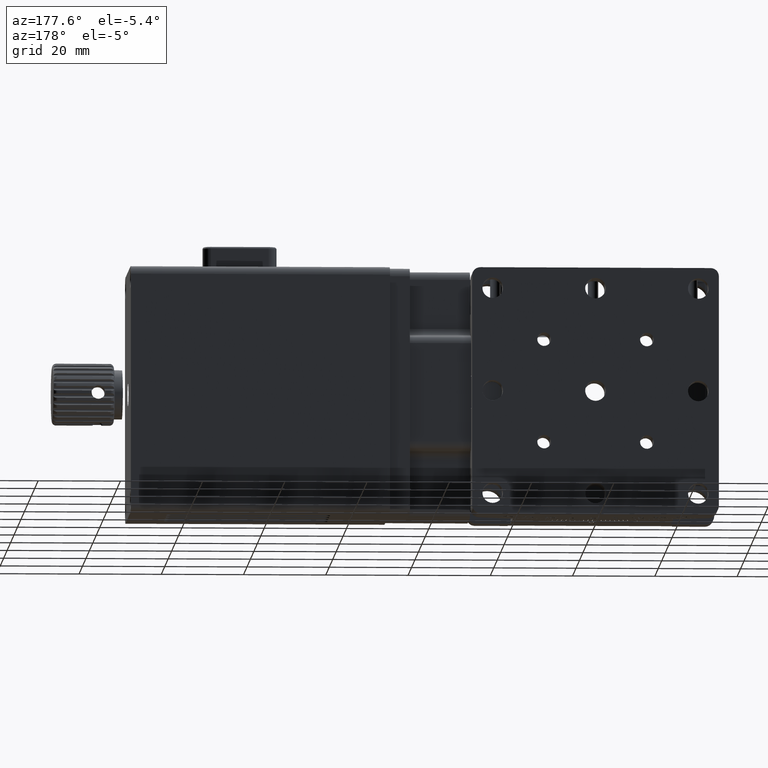
[diagram: clean part render]
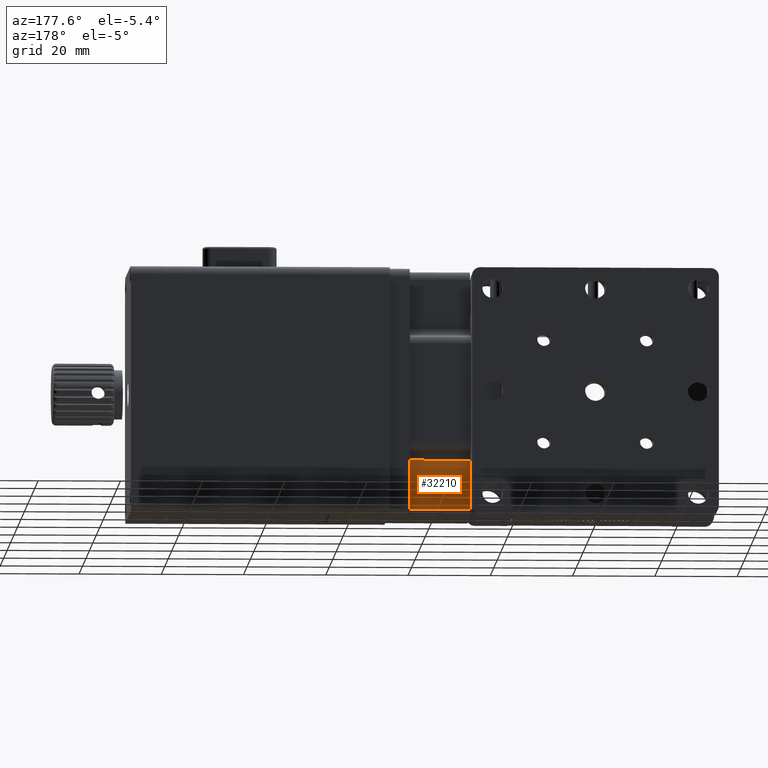
[diagram: same view with one face highlighted and labeled with its STEP entity id]
A machine part, auxiliary view. The second image highlights one B-rep face of the part: STEP entity #32210.
In plain terms, the highlighted planar face has unit normal (0, -1, 0).
Its self-contained STEP definition (entity closure, byte-faithful):
#846 = AXIS2_PLACEMENT_3D ( 'NONE', #24958, #1634, #28862 ) ;
#1018 = EDGE_CURVE ( 'NONE', #33322, #27968, #13964, .T. ) ;
#1634 = DIRECTION ( 'NONE',  ( 0.0000000000000000000, -1.000000000000000000, 0.0000000000000000000 ) ) ;
#3577 = ORIENTED_EDGE ( 'NONE', *, *, #1018, .T. ) ;
#4374 = ORIENTED_EDGE ( 'NONE', *, *, #44764, .T. ) ;
#5514 = CARTESIAN_POINT ( 'NONE',  ( 30.00000000000000000, 21.00000000000000400, -28.00000000000000000 ) ) ;
#5644 = DIRECTION ( 'NONE',  ( -0.0000000000000000000, -0.0000000000000000000, -1.000000000000000000 ) ) ;
#5696 = CARTESIAN_POINT ( 'NONE',  ( 45.00000000000000000, 21.00000000000000400, -16.00000000000000400 ) ) ;
#6225 = CARTESIAN_POINT ( 'NONE',  ( 45.00000000000000000, 21.00000000000000400, -16.00000000000000400 ) ) ;
#7627 = EDGE_CURVE ( 'NONE', #12029, #14498, #9670, .T. ) ;
#9670 = LINE ( 'NONE', #43251, #18803 ) ;
#10559 = EDGE_CURVE ( 'NONE', #33322, #14498, #46633, .T. ) ;
#11094 = ORIENTED_EDGE ( 'NONE', *, *, #7627, .T. ) ;
#12029 = VERTEX_POINT ( 'NONE', #32659 ) ;
#12171 = DIRECTION ( 'NONE',  ( -1.000000000000000000, -0.0000000000000000000, -0.0000000000000000000 ) ) ;
#13964 = LINE ( 'NONE', #6225, #33390 ) ;
#14498 = VERTEX_POINT ( 'NONE', #5514 ) ;
#15204 = FACE_OUTER_BOUND ( 'NONE', #32590, .T. ) ;
#18803 = VECTOR ( 'NONE', #12171, 1000.000000000000000 ) ;
#19771 = VECTOR ( 'NONE', #5644, 1000.000000000000000 ) ;
#23882 = DIRECTION ( 'NONE',  ( -0.0000000000000000000, -0.0000000000000000000, -1.000000000000000000 ) ) ;
#24958 = CARTESIAN_POINT ( 'NONE',  ( 30.00000000000000000, 21.00000000000000400, -30.00000000000000400 ) ) ;
#25047 = CARTESIAN_POINT ( 'NONE',  ( 45.00000000000000000, 21.00000000000000400, -30.00000000000000400 ) ) ;
#25452 = DIRECTION ( 'NONE',  ( 1.000000000000000000, 0.0000000000000000000, -0.0000000000000000000 ) ) ;
#27968 = VERTEX_POINT ( 'NONE', #5696 ) ;
#28700 = PLANE ( 'NONE',  #846 ) ;
#28862 = DIRECTION ( 'NONE',  ( 0.0000000000000000000, -0.0000000000000000000, -1.000000000000000000 ) ) ;
#31295 = LINE ( 'NONE', #25047, #19771 ) ;
#32210 = ADVANCED_FACE ( 'NONE', ( #15204 ), #28700, .F. ) ;
#32590 = EDGE_LOOP ( 'NONE', ( #4374, #11094, #40516, #3577 ) ) ;
#32659 = CARTESIAN_POINT ( 'NONE',  ( 45.00000000000000000, 21.00000000000000400, -28.00000000000000000 ) ) ;
#33322 = VERTEX_POINT ( 'NONE', #40305 ) ;
#33390 = VECTOR ( 'NONE', #25452, 1000.000000000000000 ) ;
#36317 = VECTOR ( 'NONE', #23882, 1000.000000000000000 ) ;
#39162 = CARTESIAN_POINT ( 'NONE',  ( 30.00000000000000000, 21.00000000000000400, -30.00000000000000400 ) ) ;
#40305 = CARTESIAN_POINT ( 'NONE',  ( 30.00000000000000000, 21.00000000000000400, -16.00000000000000400 ) ) ;
#40516 = ORIENTED_EDGE ( 'NONE', *, *, #10559, .F. ) ;
#43251 = CARTESIAN_POINT ( 'NONE',  ( 30.00000000000000000, 21.00000000000000400, -28.00000000000000000 ) ) ;
#44764 = EDGE_CURVE ( 'NONE', #27968, #12029, #31295, .T. ) ;
#46633 = LINE ( 'NONE', #39162, #36317 ) ;